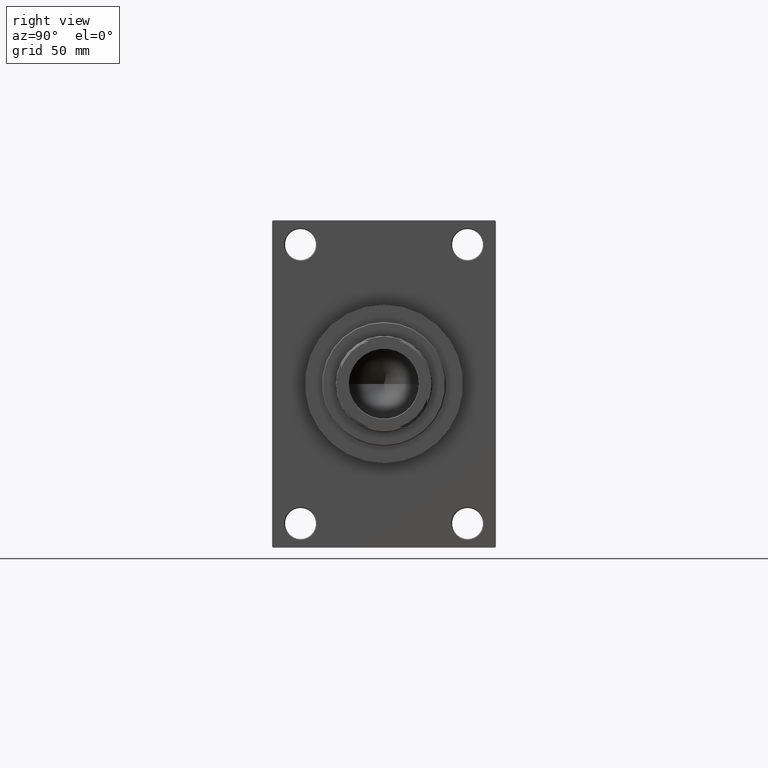
[diagram: clean part render]
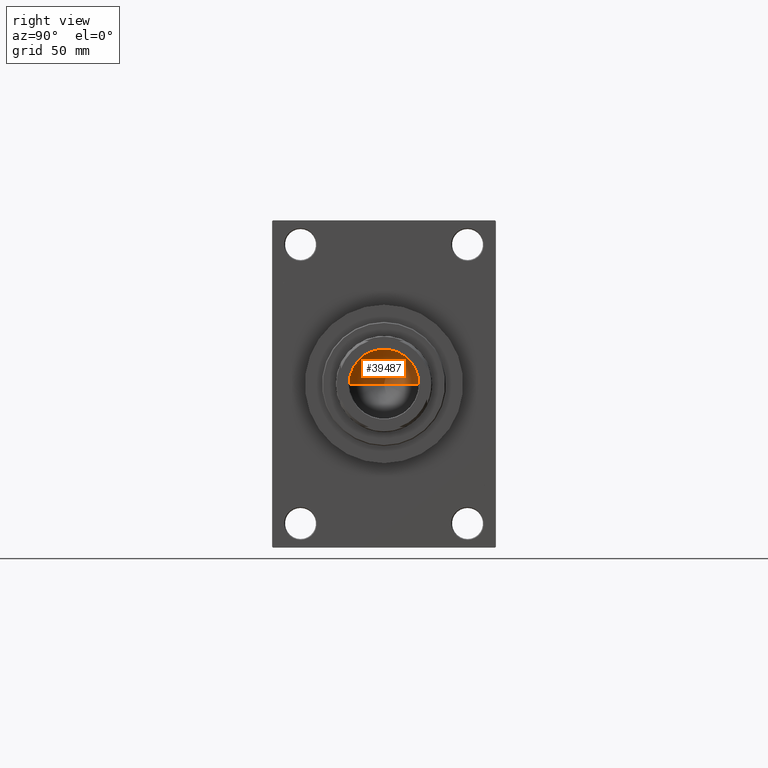
[diagram: same view with one face highlighted and labeled with its STEP entity id]
A machine part, right view. The second image highlights one B-rep face of the part: STEP entity #39487.
In plain terms, the highlighted conical surface has half-angle 59 deg.
Its self-contained STEP definition (entity closure, byte-faithful):
#2521 = CIRCLE ( 'NONE', #4071, 20.24999999999998934 ) ;
#3823 = VECTOR ( 'NONE', #16020, 1000.000000000000000 ) ;
#4071 = AXIS2_PLACEMENT_3D ( 'NONE', #44068, #18487, #15092 ) ;
#7460 = DIRECTION ( 'NONE',  ( 1.000000000000000000, 0.000000000000000000, 0.000000000000000000 ) ) ;
#7988 = AXIS2_PLACEMENT_3D ( 'NONE', #32833, #25357, #7460 ) ;
#11521 = VERTEX_POINT ( 'NONE', #43324 ) ;
#15071 = EDGE_LOOP ( 'NONE', ( #27084, #30586, #38500 ) ) ;
#15092 = DIRECTION ( 'NONE',  ( 1.000000000000000000, 0.000000000000000000, 0.000000000000000000 ) ) ;
#16020 = DIRECTION ( 'NONE',  ( -0.8571673007021112234, 1.049727191138617340E-16, 0.5150380749100560429 ) ) ;
#17899 = VECTOR ( 'NONE', #46772, 1000.000000000000000 ) ;
#18487 = DIRECTION ( 'NONE',  ( -0.000000000000000000, -0.000000000000000000, 1.000000000000000000 ) ) ;
#20073 = VERTEX_POINT ( 'NONE', #21709 ) ;
#20724 = LINE ( 'NONE', #38819, #17899 ) ;
#21709 = CARTESIAN_POINT ( 'NONE',  ( -1.584115414415908206E-14, 0.000000000000000000, 218.8325724646919070 ) ) ;
#22577 = CARTESIAN_POINT ( 'NONE',  ( -20.24999999999998934, 2.479909768273389117E-15, 231.0000000000000284 ) ) ;
#25357 = DIRECTION ( 'NONE',  ( -0.000000000000000000, -0.000000000000000000, 1.000000000000000000 ) ) ;
#26130 = EDGE_CURVE ( 'NONE', #20073, #11521, #41139, .T. ) ;
#27084 = ORIENTED_EDGE ( 'NONE', *, *, #34579, .F. ) ;
#29447 = FACE_OUTER_BOUND ( 'NONE', #15071, .T. ) ;
#30586 = ORIENTED_EDGE ( 'NONE', *, *, #26130, .T. ) ;
#32833 = CARTESIAN_POINT ( 'NONE',  ( 0.000000000000000000, 0.000000000000000000, 231.0000000000000284 ) ) ;
#34579 = EDGE_CURVE ( 'NONE', #20073, #36607, #20724, .T. ) ;
#34641 = CARTESIAN_POINT ( 'NONE',  ( 20.24999999999998934, 0.000000000000000000, 231.0000000000000284 ) ) ;
#36448 = EDGE_CURVE ( 'NONE', #11521, #36607, #2521, .T. ) ;
#36607 = VERTEX_POINT ( 'NONE', #34641 ) ;
#38500 = ORIENTED_EDGE ( 'NONE', *, *, #36448, .T. ) ;
#38819 = CARTESIAN_POINT ( 'NONE',  ( 20.24999999999998934, 0.000000000000000000, 231.0000000000000284 ) ) ;
#39487 = ADVANCED_FACE ( 'NONE', ( #29447 ), #43446, .F. ) ;
#41139 = LINE ( 'NONE', #22577, #3823 ) ;
#43324 = CARTESIAN_POINT ( 'NONE',  ( -20.24999999999998934, 2.479909768273389117E-15, 231.0000000000000284 ) ) ;
#43446 = CONICAL_SURFACE ( 'NONE', #7988, 20.24999999999998934, 1.029744258676652313 ) ;
#44068 = CARTESIAN_POINT ( 'NONE',  ( 0.000000000000000000, 0.000000000000000000, 231.0000000000000284 ) ) ;
#46772 = DIRECTION ( 'NONE',  ( 0.8571673007021112234, 0.000000000000000000, 0.5150380749100560429 ) ) ;